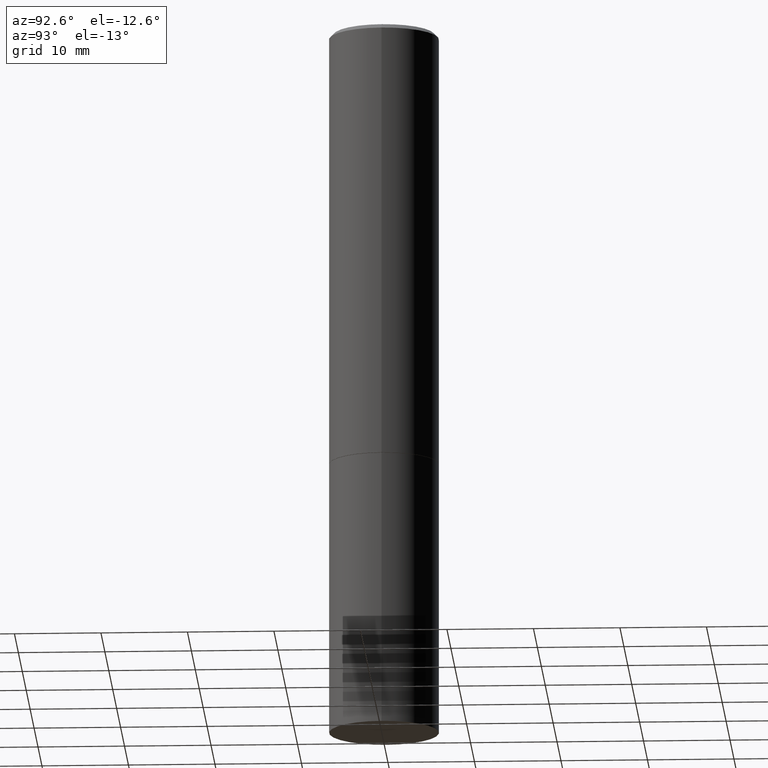
[diagram: clean part render]
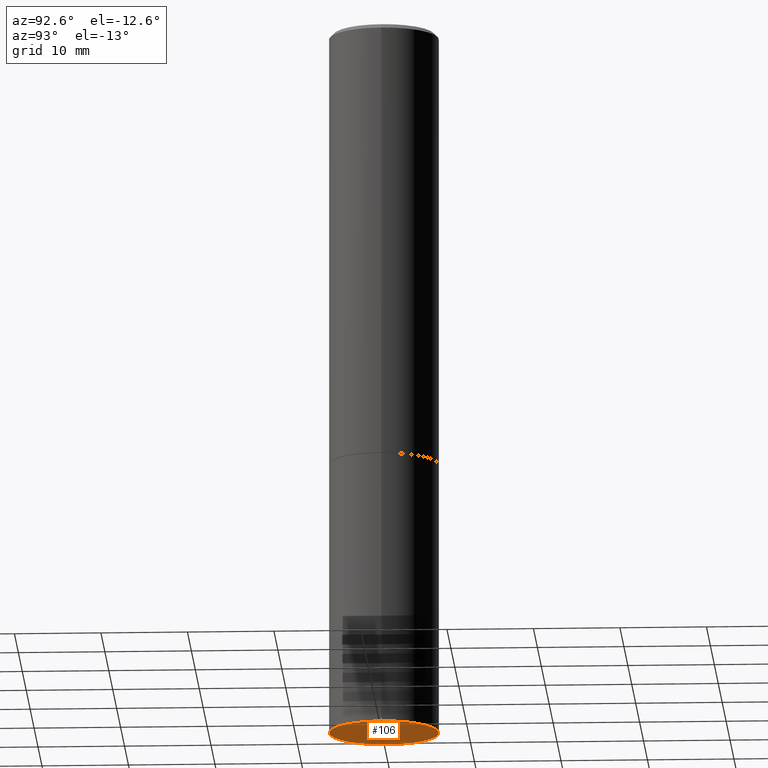
[diagram: same view with one face highlighted and labeled with its STEP entity id]
A machine part, auxiliary view. The second image highlights one B-rep face of the part: STEP entity #106.
In plain terms, the highlighted planar face has unit normal (0, -0, -1).
Its self-contained STEP definition (entity closure, byte-faithful):
#2 = CIRCLE ( 'NONE', #158, 0.2500000000000000000 ) ;
#14 = CARTESIAN_POINT ( 'NONE',  ( 7.947773620101693940E-29, -1.134731435124022443E-14, -3.250000000000000000 ) ) ;
#33 = EDGE_CURVE ( 'NONE', #227, #286, #107, .T. ) ;
#59 = FACE_OUTER_BOUND ( 'NONE', #280, .T. ) ;
#63 = DIRECTION ( 'NONE',  ( 2.438088387897960049E-29, -3.491481338843145188E-15, -1.000000000000000000 ) ) ;
#68 = DIRECTION ( 'NONE',  ( 1.000000000000000000, -6.982962677686262766E-15, 0.000000000000000000 ) ) ;
#97 = DIRECTION ( 'NONE',  ( -2.445468806185136597E-29, 3.491481338843145583E-15, 1.000000000000000000 ) ) ;
#106 = ADVANCED_FACE ( 'NONE', ( #59 ), #218, .T. ) ;
#107 = CIRCLE ( 'NONE', #358, 0.2500000000000000000 ) ;
#115 = CARTESIAN_POINT ( 'NONE',  ( 0.2500000000000000000, -1.309305502066178953E-14, -3.250000000000000000 ) ) ;
#133 = ORIENTED_EDGE ( 'NONE', *, *, #150, .F. ) ;
#150 = EDGE_CURVE ( 'NONE', #286, #227, #2, .T. ) ;
#158 = AXIS2_PLACEMENT_3D ( 'NONE', #14, #97, #349 ) ;
#176 = ORIENTED_EDGE ( 'NONE', *, *, #33, .F. ) ;
#191 = DIRECTION ( 'NONE',  ( -2.445468806185136597E-29, 3.491481338843145583E-15, 1.000000000000000000 ) ) ;
#208 = AXIS2_PLACEMENT_3D ( 'NONE', #279, #63, #252 ) ;
#218 = PLANE ( 'NONE',  #208 ) ;
#220 = CARTESIAN_POINT ( 'NONE',  ( -0.2500000000000000000, -7.388781675063007725E-15, -3.250000000000000000 ) ) ;
#227 = VERTEX_POINT ( 'NONE', #115 ) ;
#252 = DIRECTION ( 'NONE',  ( -1.000000000000000000, 6.982962677686265922E-15, -4.876176775795935793E-29 ) ) ;
#256 = CARTESIAN_POINT ( 'NONE',  ( 7.947773620101693940E-29, -1.134731435124022443E-14, -3.250000000000000000 ) ) ;
#279 = CARTESIAN_POINT ( 'NONE',  ( 1.745740669421645958E-15, 0.2499999999999886480, -3.250000000000001332 ) ) ;
#280 = EDGE_LOOP ( 'NONE', ( #176, #133 ) ) ;
#286 = VERTEX_POINT ( 'NONE', #220 ) ;
#349 = DIRECTION ( 'NONE',  ( 1.000000000000000000, -6.982962677686262766E-15, 0.000000000000000000 ) ) ;
#358 = AXIS2_PLACEMENT_3D ( 'NONE', #256, #191, #68 ) ;